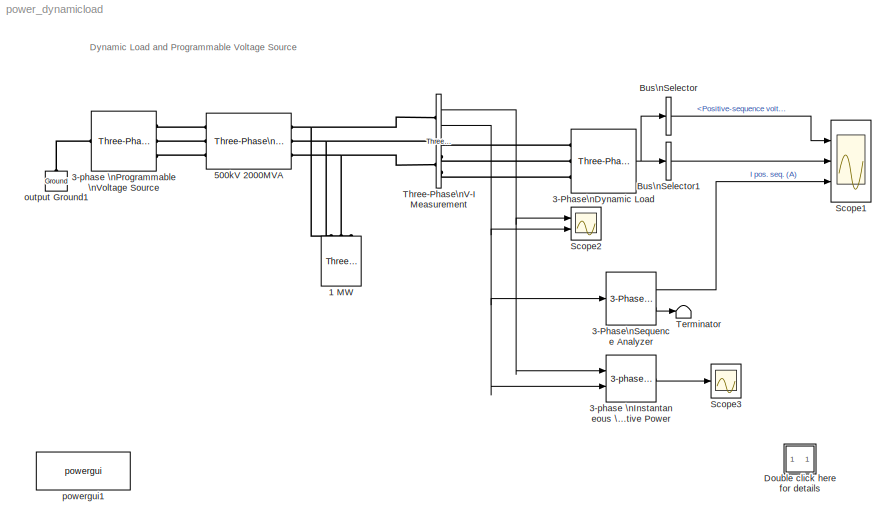
MODEL power_dynamicload
KIND model
BLOCK [Reference] 1 MW  REF=powerlib/Elements/Three-Phase\nSeries RLC Load
  ActivePower = 1e6
  AttributesFormatString = \\n
  CapacitivePower = 0
  Configuration = Y (grounded)
  InductivePower = 0
  LConnTagsString = A|B|C
  LeftPortType = p1
  Measurements = None
  NominalFrequency = 60
  NominalVoltage = 500e3
  PhysicalDomain = powersysdomain
  Ports = [0, 0, 0, 0, 0, 3]
  RightPortType = p1
  SourceBlock = powerlib/Elements/Three-Phase\nSeries RLC Load
  SourceType = Three-Phase Series RLC Load
  SubClassName = unknown
BLOCK [Reference] 3-Phase\nDynamic Load  REF=powerlib/Elements/Three-Phase\nDynamic Load
  ActiveReactivePowers = [5e+007 2.5e+007]
  ExternalControl = off
  LoadFlowParameters = [4 50000000 0 0 25000000]
  MinimumVoltage = 0.7
  NominalVoltage = [ 500e3 60 ]
  NpNq = [1  1]
  Ports = [0, 1, 0, 0, 0, 3]
  PositiveSequence = [0.98441 -1.41063]
  ShowPortLabels = on
  SourceBlock = powerlib/Elements/Three-Phase\nDynamic Load
  SourceType = Three-Phase Dynamic Load
  TimeConstants = [0  0  0  0]
BLOCK [Reference] 3-Phase\nSequence Analyzer  REF=powerlib_extras/Measurements/3-Phase\nSequence Analyzer
  Ports = [1, 2]
  ShowPortLabels = on
  SourceBlock = powerlib_extras/Measurements/3-Phase\nSequence Analyzer
  SourceType = 3-Phase Sequence analyzer
  f1 = 60
  n = 1
  seq = Positive
BLOCK [Reference] 3-phase \nInstantaneous \nActive & Reactive Power  REF=powerlib_extras/Measurements/3-phase \nInstantaneous \nActive & Reactive Power
  Ports = [2, 1]
  ShowPortLabels = on
  SourceBlock = powerlib_extras/Measurements/3-phase \nInstantaneous \nActive & Reactive Power
  SourceType = 3-phase instantaneous active and reactive power
BLOCK [Reference] 3-phase \nProgrammable \nVoltage Source  REF=powerlib/Electrical\nSources/Three-Phase\nProgrammable\nVoltage Source
  Amplitudes = [1 0.8 1.2 1.0]
  HarmonicA = [3 0.2 -25 0]
  HarmonicB = [2 0.15  35 2]
  HarmonicGeneration = off
  Ports = [0, 0, 0, 0, 0, 1, 3]
  PositiveSequence = [500e3 0  60]
  ShowPortLabels = on
  SourceBlock = powerlib/Electrical\nSources/Three-Phase\nProgrammable\nVoltage Source
  SourceType = Three-Phase Programmable Voltage Source
  TimeValues = [0 0.1 0.15 0.2]
  Timing = [0.05  3]
  VariationEntity = Amplitude
  VariationFrequency = 1
  VariationMagnitude = 0.5
  VariationPhaseA = off
  VariationRate = 10
  VariationStep = -0.5
  VariationTiming = [0.2 1.2]
  VariationType = Modulation
BLOCK [Reference] 500kV 2000MVA  REF=powerlib/Elements/Three-Phase\nSeries RLC Branch
  AttributesFormatString = \\n
  Capacitance = inf
  Inductance = 500^2/2000/377
  LConnTagsString = A|B|C
  LeftPortType = p1
  Measurements = None
  PhysicalDomain = powersysdomain
  Ports = [0, 0, 0, 0, 0, 3, 3]
  RConnTagsString = A|B|C
  Resistance = 500^2/2000/10
  RightPortType = p1
  SourceBlock = powerlib/Elements/Three-Phase\nSeries RLC Branch
  SourceType = Three-Phase Series RLC Branch
  SubClassName = unknown
BLOCK [BusSelector] Bus\nSelector
  DialogController = Simulink.DDGSource_Bus
  OutputSignals = Positive-sequence voltage V (pu)
  Ports = [1, 1]
BLOCK [BusSelector] Bus\nSelector1
  DialogController = Simulink.DDGSource_Bus
  MuxedOutput = on
  OutputSignals = Active power P (W),Reactive power Q (var)
  Ports = [1, 1]
BLOCK [SubSystem] Double click here for details
  MaskDisplay = disp('?')
  MaskIconFrame = on
  MaskIconOpaque = on
  MaskIconRotate = none
  MaskIconUnits = autoscale
  MinAlgLoopOccurrences = off
  Ports = []
  RTWSystemCode = Auto
  TreatAsAtomicUnit = off
BLOCK [Scope] Scope1
  DataFormat = StructureWithTime
  LimitDataPoints = off
  NumInputPorts = 3
  Ports = [3]
  SaveName = ScopeData1
  TimeRange = 1.4
  YMax = 1.5~8e+007~95
  YMin = 0.4~5e+006~62.5
  ZoomMode = yonly
BLOCK [Scope] Scope2
  DataFormat = StructureWithTime
  LimitDataPoints = off
  NumInputPorts = 2
  Ports = [2]
  TimeRange = 1.4
  YMax = 1e+006~100
  YMin = -1e+006~-100
  ZoomMode = xonly
BLOCK [Scope] Scope3
  DataFormat = StructureWithTime
  LimitDataPoints = off
  NumInputPorts = 1
  Ports = [1]
  SaveName = ScopeData3
  TimeRange = 1.4
  YMax = 8e+007
  YMin = 0
  ZoomMode = yonly
BLOCK [Terminator] Terminator
BLOCK [Reference] Three-Phase\nV-I Measurement  REF=powerlib/Measurements/Three-Phase\nV-I Measurement
  CurrentMeasurement = yes
  Ipu = off
  LabelI = I1
  LabelV = V1
  OutputType = Magnitude
  PSBequivalent = 0
  Pbase = 100e6
  PhasorSimulation = off
  Ports = [0, 2, 0, 0, 0, 3, 3]
  SetLabelI = off
  SetLabelV = off
  ShowPortLabels = on
  SourceBlock = powerlib/Measurements/Three-Phase\nV-I Measurement
  SourceType = Three-Phase VI Measurement
  Vbase = 500e3
  VoltageMeasurement = phase-to-ground
  Vpu = off
BLOCK [Reference] output Ground1  REF=powerlib/Elements/Ground
  AttributesFormatString = \\n
  LConnTagsString = a
  LeftPortType = p1
  PhysicalDomain = powersysdomain
  Ports = [0, 0, 0, 0, 0, 1]
  RightPortType = p1
  SourceBlock = powerlib/Elements/Ground
  SourceType = Ground
  SubClassName = unknown
BLOCK [Reference] powergui1  REF=powerlib/powergui
  DisplayStyle = off
  Frange = [0:2:500]
  FreqAxis = off
  MaxFrequency = 1000
  Ports = []
  Priority = 2
  RmsSteady = 2
  ShowPortLabels = on
  SourceBlock = powerlib/powergui
  SourceType = PSB option menu block
  StartTime = 0.0
  Ts = 0
  Xlog = off
  Ylog = off
  ZoomFFT = on
  cycles = 1
  display = off
  echomessages = on
  frequency = 60
  frequencyindice = 60
  frequencyindicesteady = 1
  fundamental = 60
  methode = off
  save = off
  variable = ZData
ANNOTATION (root): Dynamic Load and Programmable Voltage Source
ANNOTATION Double click here for details: 1. Initializing the dynamic load
ANNOTATION Double click here for details: 2. Simulating the voltage swing
ANNOTATION Double click here for details: A dynamic load is connected on a 500 kV, 60 Hz power network . The network is simulated by its Thevenin equivalent (voltage source behind a R-L impedance \ncorresponding to a 3-phase short circuit level of 2000 MVA). The source internal voltage is modulated in order to simulate voltage variation during a power swing. \nAs the dymamic load is a nonlinear model simulated by current sources, it canno...<+1530ch>
ANNOTATION Double click here for details: Circuit Description
ANNOTATION Double click here for details: Demonstration
ANNOTATION Double click here for details: G. Sybille (Hydro-Quebec)
ANNOTATION Double click here for details: In order to start the simulation in steady-state you have to specify the correct initial voltage Vo (magnitude and phase) corresponding to desired Po and Qo\nvalues. You will now use the 'Load Flow' utility to find this voltage and initialize the dynamic load.\n\nOpen the Powergui and select 'Load Flow and Machine Initialization' . Specify the desired active power and reactive powers for the Dynam...<+457ch>
ANNOTATION Double click here for details: Start the simulation and observe load voltage, P&Q powers and current on Scope1. Observe that simulation starts in steady state. At t = 0.2 s, when voltage\nmodulation is initiated, P and Q start to increase (trace 2), but, as np and nq are set to 1, the load current (trace 3) stays constant.. When voltage falls below 0.7 pu \nthe load behaves as a constant impedance. Therefore load current follow...<+240ch>
ANNOTATION Double click here for details: This example illustrates use of the 3-Phase Dynamic Load and 3-Phase Programmable Voltage Source blocks
NET 3-Phase\nDynamic Load:1 -> Bus\nSelector1:1, Bus\nSelector:1
LINE 3-Phase\nSequence Analyzer:1 -> Scope1:3
LINE 3-Phase\nSequence Analyzer:2 -> Terminator:1
LINE 3-phase \nInstantaneous \nActive & Reactive Power:1 -> Scope3:1
LINE Bus\nSelector1:1 -> Scope1:2
LINE Bus\nSelector:1 -> Scope1:1
NET Three-Phase\nV-I Measurement:1 -> 3-phase \nInstantaneous \nActive & Reactive Power:1, Scope2:1
NET Three-Phase\nV-I Measurement:2 -> 3-Phase\nSequence Analyzer:1, 3-phase \nInstantaneous \nActive & Reactive Power:2, Scope2:2
PNET net1: 1 MW:LConn1 -- 500kV 2000MVA:RConn1 -- Three-Phase\nV-I Measurement:LConn1
PNET net2: 1 MW:LConn2 -- 500kV 2000MVA:RConn2 -- Three-Phase\nV-I Measurement:LConn2
PNET net3: 1 MW:LConn3 -- 500kV 2000MVA:RConn3 -- Three-Phase\nV-I Measurement:LConn3
PLINE 3-Phase\nDynamic Load:LConn1 -- Three-Phase\nV-I Measurement:RConn1
PLINE 3-Phase\nDynamic Load:LConn2 -- Three-Phase\nV-I Measurement:RConn2
PLINE 3-Phase\nDynamic Load:LConn3 -- Three-Phase\nV-I Measurement:RConn3
PLINE 3-phase \nProgrammable \nVoltage Source:LConn1 -- output Ground1:LConn1
PLINE 3-phase \nProgrammable \nVoltage Source:RConn1 -- 500kV 2000MVA:LConn1
PLINE 3-phase \nProgrammable \nVoltage Source:RConn2 -- 500kV 2000MVA:LConn2
PLINE 3-phase \nProgrammable \nVoltage Source:RConn3 -- 500kV 2000MVA:LConn3
note: NET lines group one-source signal fan-out (src -> all destinations, sorted); 1:1 wires keep LINE; PNET lines group multi-terminal physical nets as a canonical sorted terminal list (undirected conserving connections); 2-terminal nets keep the pairwise PLINE form
